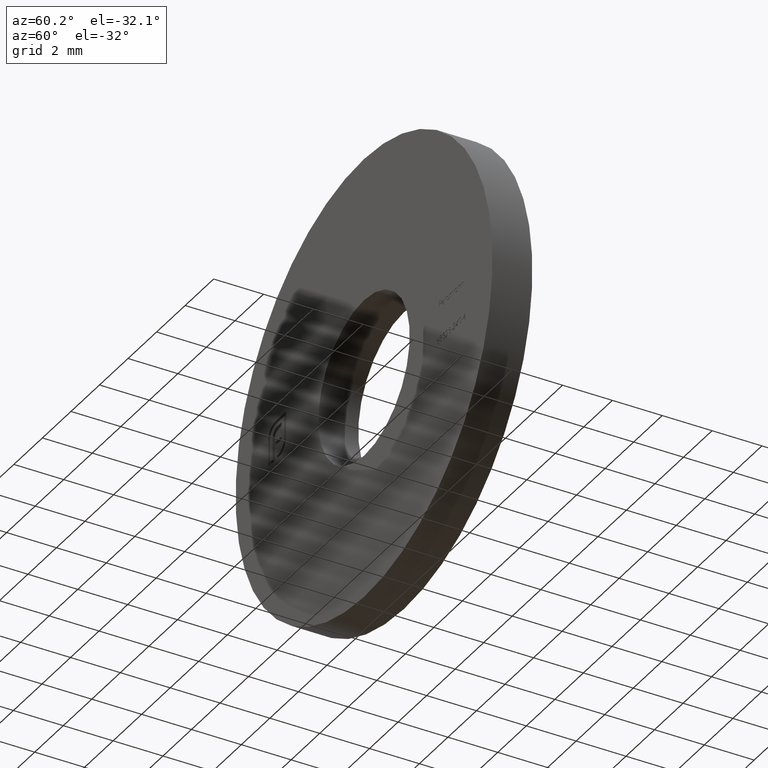
[diagram: clean part render]
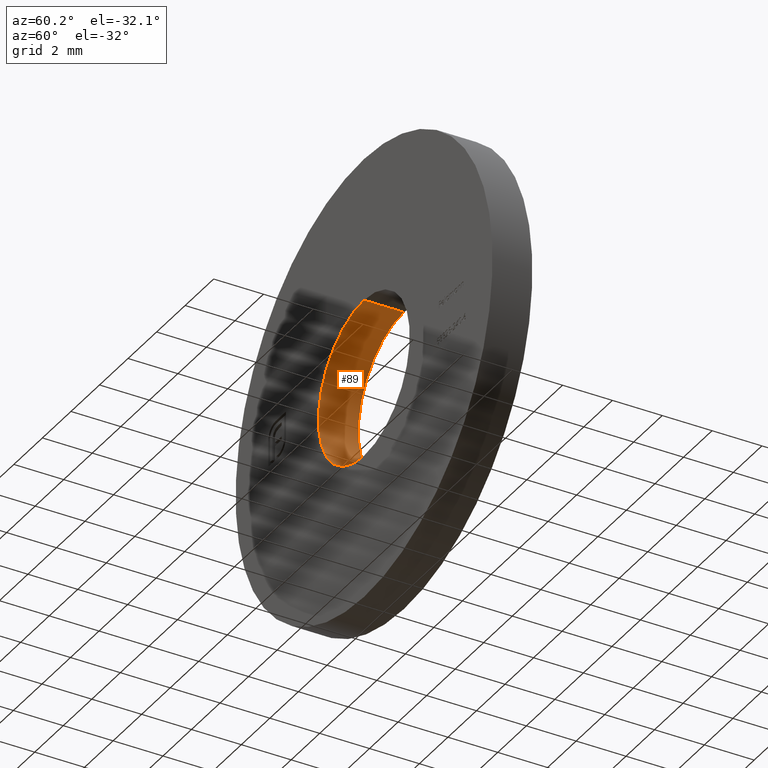
[diagram: same view with one face highlighted and labeled with its STEP entity id]
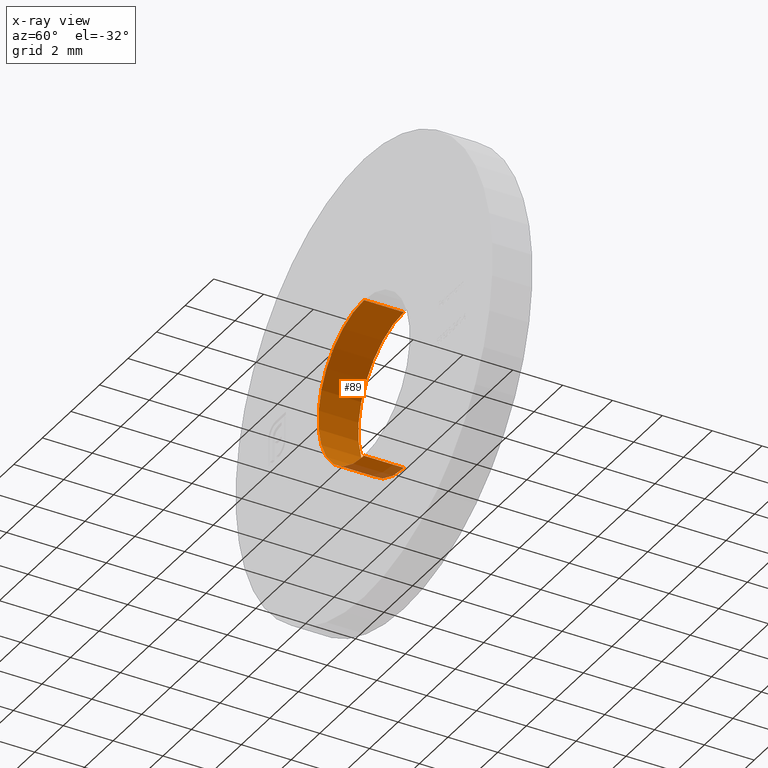
[diagram: x-ray of the same camera — body ghosted, the highlighted face saturated]
A machine part, auxiliary view. The second image highlights one B-rep face of the part: STEP entity #89.
The next image is the same camera in x-ray: the body ghosted, the highlighted face saturated — about 3% of this face is hidden behind the body in this view.
In plain terms, the highlighted cylindrical surface (partial cylindrical patch) has radius 3.2 mm, axis along (-0, -1, -0).
Its self-contained STEP definition (entity closure, byte-faithful):
#41 = VECTOR ( 'NONE', #1991, 1000.000000000000000 ) ;
#89 = ADVANCED_FACE ( 'NONE', ( #10819 ), #13669, .F. ) ;
#230 = DIRECTION ( 'NONE',  ( 0.000000000000000000, 0.000000000000000000, 1.000000000000000000 ) ) ;
#320 = CIRCLE ( 'NONE', #16176, 3.200000000000000178 ) ;
#683 = AXIS2_PLACEMENT_3D ( 'NONE', #4582, #14956, #13564 ) ;
#859 = VECTOR ( 'NONE', #14047, 1000.000000000000000 ) ;
#913 = DIRECTION ( 'NONE',  ( 0.000000000000000000, 0.000000000000000000, 1.000000000000000000 ) ) ;
#1030 = ORIENTED_EDGE ( 'NONE', *, *, #4884, .F. ) ;
#1967 = VERTEX_POINT ( 'NONE', #13163 ) ;
#1991 = DIRECTION ( 'NONE',  ( -0.000000000000000000, -1.000000000000000000, -0.000000000000000000 ) ) ;
#4452 = EDGE_CURVE ( 'NONE', #9339, #8097, #4514, .T. ) ;
#4514 = LINE ( 'NONE', #10143, #859 ) ;
#4582 = CARTESIAN_POINT ( 'NONE',  ( 0.000000000000000000, 0.8000000000000000444, 0.000000000000000000 ) ) ;
#4732 = CARTESIAN_POINT ( 'NONE',  ( 0.000000000000000000, -0.8000000000000000444, -3.200000000000000178 ) ) ;
#4884 = EDGE_CURVE ( 'NONE', #1967, #9716, #13815, .T. ) ;
#5391 = AXIS2_PLACEMENT_3D ( 'NONE', #15813, #6651, #230 ) ;
#5439 = EDGE_CURVE ( 'NONE', #9716, #8097, #8552, .T. ) ;
#6203 = DIRECTION ( 'NONE',  ( 0.000000000000000000, 1.000000000000000000, 0.000000000000000000 ) ) ;
#6651 = DIRECTION ( 'NONE',  ( 0.000000000000000000, 1.000000000000000000, 0.000000000000000000 ) ) ;
#8097 = VERTEX_POINT ( 'NONE', #8286 ) ;
#8286 = CARTESIAN_POINT ( 'NONE',  ( 3.918869757271530460E-16, -0.8000000000000000444, 3.200000000000000178 ) ) ;
#8552 = CIRCLE ( 'NONE', #5391, 3.200000000000000178 ) ;
#8562 = ORIENTED_EDGE ( 'NONE', *, *, #4452, .T. ) ;
#9339 = VERTEX_POINT ( 'NONE', #12648 ) ;
#9716 = VERTEX_POINT ( 'NONE', #4732 ) ;
#10143 = CARTESIAN_POINT ( 'NONE',  ( 3.918869757271530460E-16, 0.8000000000000000444, 3.200000000000000178 ) ) ;
#10819 = FACE_OUTER_BOUND ( 'NONE', #12418, .T. ) ;
#11454 = CARTESIAN_POINT ( 'NONE',  ( 0.000000000000000000, 0.8000000000000000444, 0.000000000000000000 ) ) ;
#12273 = CARTESIAN_POINT ( 'NONE',  ( 0.000000000000000000, 0.8000000000000000444, -3.200000000000000178 ) ) ;
#12418 = EDGE_LOOP ( 'NONE', ( #13611, #8562, #16434, #1030 ) ) ;
#12648 = CARTESIAN_POINT ( 'NONE',  ( 3.918869757271530460E-16, 0.8000000000000000444, 3.200000000000000178 ) ) ;
#13163 = CARTESIAN_POINT ( 'NONE',  ( 0.000000000000000000, 0.8000000000000000444, -3.200000000000000178 ) ) ;
#13564 = DIRECTION ( 'NONE',  ( 0.000000000000000000, 0.000000000000000000, -1.000000000000000000 ) ) ;
#13611 = ORIENTED_EDGE ( 'NONE', *, *, #14493, .T. ) ;
#13669 = CYLINDRICAL_SURFACE ( 'NONE', #683, 3.200000000000000178 ) ;
#13815 = LINE ( 'NONE', #12273, #41 ) ;
#14047 = DIRECTION ( 'NONE',  ( -0.000000000000000000, -1.000000000000000000, -0.000000000000000000 ) ) ;
#14493 = EDGE_CURVE ( 'NONE', #1967, #9339, #320, .T. ) ;
#14956 = DIRECTION ( 'NONE',  ( -0.000000000000000000, -1.000000000000000000, -0.000000000000000000 ) ) ;
#15813 = CARTESIAN_POINT ( 'NONE',  ( 0.000000000000000000, -0.8000000000000000444, 0.000000000000000000 ) ) ;
#16176 = AXIS2_PLACEMENT_3D ( 'NONE', #11454, #6203, #913 ) ;
#16434 = ORIENTED_EDGE ( 'NONE', *, *, #5439, .F. ) ;